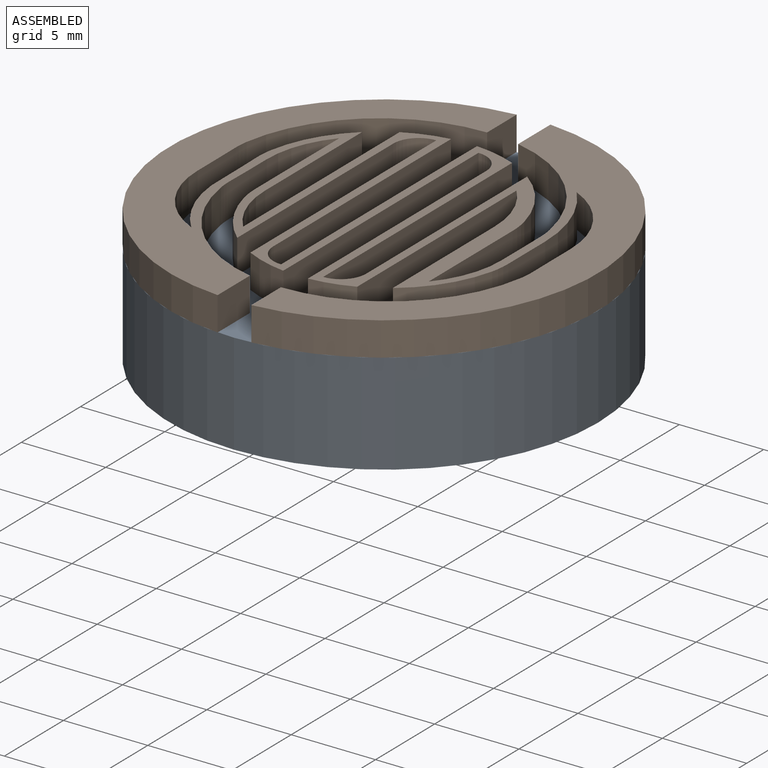
[diagram: assembled view]
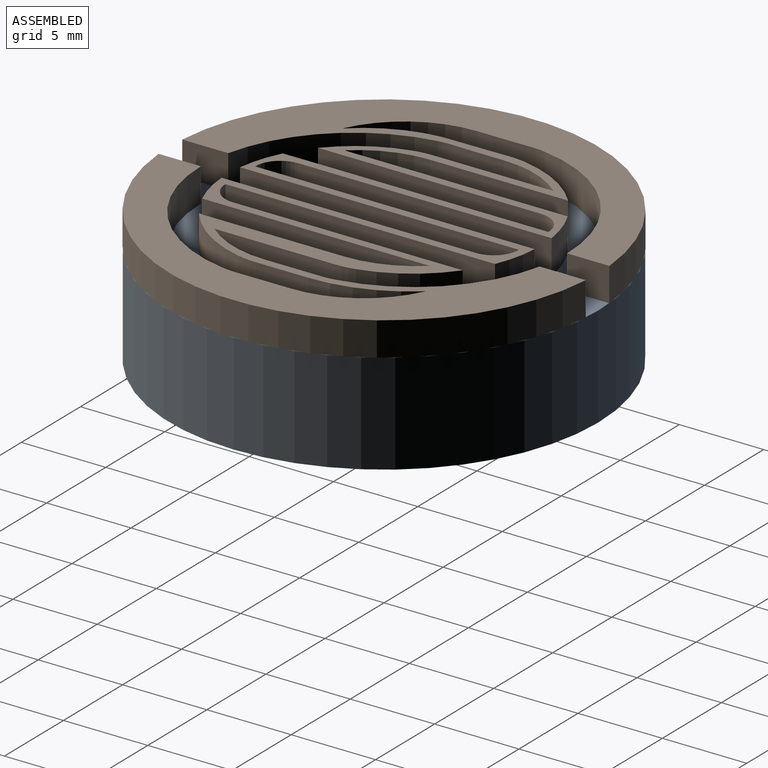
[diagram: assembled view, second angle]
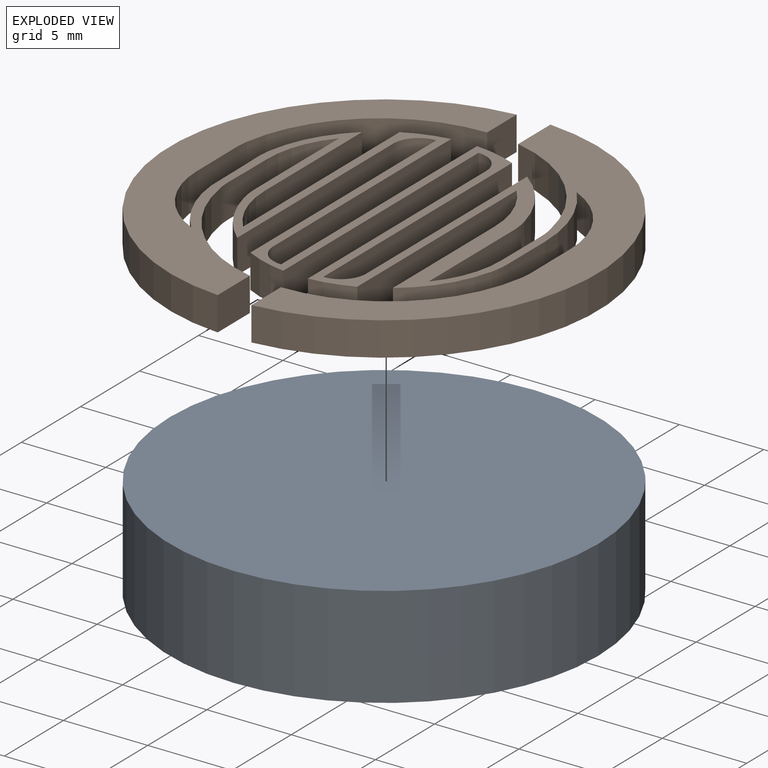
[diagram: exploded view]
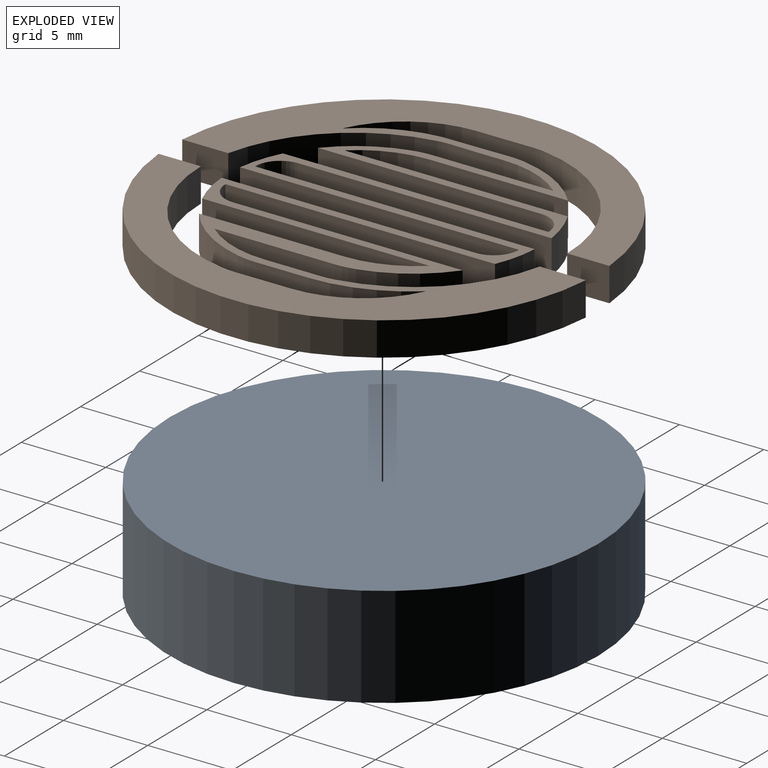
[diagram: exploded view, second angle]
ASSEMBLY  parts=2 mates=2
PART A: 3 faces, bbox 25.4x25.4x6 mm
  f0: cylinder r=12.7mm len=25.4mm, axis (0,0,-1), area 478.8mm2, adj f1,f2
  f1: plane 25.4x25.4mm, normal (0,0,1), area 506.7mm2, adj f0
  f2: plane 25.4x25.4mm, normal (0,0,-1), area 506.7mm2, adj f0
PART B: 64 faces, bbox 25.4x25.3x2 mm
  f0: plane 13.21x2mm, normal (1,0,0), area 26.4mm2, adj f1,f61,f62,f63
  f1: cylinder r=1.5mm len=2mm, axis (0,0,-1), area 4.7mm2, adj f0,f2,f62,f63
  f2: plane 15.74x2mm, normal (-1,0,0), area 31.5mm2, adj f1,f3,f62,f63
  f3: cylinder r=7.57mm len=2.5mm, axis (0,0,-1), area 5.3mm2, adj f2,f4,f62,f63
  f4: plane 16.53x2mm, normal (1,0,0), area 33.1mm2, adj f3,f5,f62,f63
  f5: cylinder r=1.5mm len=2mm, axis (0,0,-1), area 4.7mm2, adj f4,f6,f62,f63
  f6: plane 15.08x2mm, normal (-1,0,0), area 30.2mm2, adj f5,f7,f62,f63
  f7: cylinder r=7.57mm len=2.5mm, axis (0,0,-1), area 5.2mm2, adj f6,f8,f62,f63
  f8: plane 13.48x2mm, normal (1,0,0), area 27mm2, adj f7,f9,f62,f63
  f9: cylinder r=6.08mm len=4mm, axis (0,0,-1), area 8.7mm2, adj f8,f10,f62,f63
  f10: plane 8.62x2mm, normal (-1,0,0), area 17.2mm2, adj f9,f11,f62,f63
  f11: cylinder r=7.57mm len=4.33mm, axis (0,0,-1), area 10.6mm2, adj f10,f12,f62,f63
  f12: cylinder r=5mm len=2mm, axis (0,0,-1), area 2.3mm2, adj f11,f13,f62,f63
  f13: plane 3.13x2mm, normal (1,0,0), area 6.3mm2, adj f12,f14,f62,f63
  f14: cylinder r=8.64mm len=5.53mm, axis (0,0,-1), area 12mm2, adj f13,f15,f62,f63
  f15: cylinder r=6.11mm len=5.53mm, axis (0,0,-1), area 13.8mm2, adj f14,f16,f62,f63
  f16: plane 2x1.5mm, normal (-1,0,0), area 3mm2, adj f15,f17,f62,f63
  f17: plane 2x1.73mm, normal (-1,-0.01,0), area 3.5mm2, adj f16,f18,f62,f63
  f18: cylinder r=5mm len=2mm, axis (0,0,-1), area 1.7mm2, adj f17,f19,f62,f63
  f19: cylinder r=9.07mm len=8.94mm, axis (0,0,-1), area 25.5mm2, adj f18,f20,f62,f63
  f20: plane 2.51x2mm, normal (-1,0,0), area 5mm2, adj f19,f21,f62,f63
  f21: cylinder r=12.7mm len=25.32mm, axis (0,0,-1), area 75.8mm2, adj f20,f22,f62,f63
  f22: plane 2.73x2mm, normal (-1,0,0), area 5.5mm2, adj f21,f23,f62,f63
  f23: cylinder r=9.07mm len=7.22mm, axis (0,0,-1), area 21.2mm2, adj f22,f24,f62,f63
  f24: cylinder r=5mm len=2mm, axis (0,0,-1), area 1.8mm2, adj f23,f25,f62,f63
  f25: plane 3.32x2mm, normal (-1,0,0), area 6.6mm2, adj f24,f26,f62,f63
  f26: cylinder r=6.08mm len=4mm, axis (0,0,-1), area 8.7mm2, adj f25,f27,f62,f63
  f27: plane 7.13x2mm, normal (1,0,0), area 14.3mm2, adj f26,f28,f62,f63
  f28: cylinder r=5mm len=2mm, axis (0,0,-1), area 2.3mm2, adj f27,f29,f62,f63
  f29: cylinder r=7.57mm len=4.33mm, axis (0,0,-1), area 10.6mm2, adj f28,f30,f62,f63
  f30: plane 13.62x2mm, normal (-1,0,0), area 27.2mm2, adj f29,f31,f62,f63
  f31: cylinder r=1.5mm len=2mm, axis (0,0,-1), area 4.7mm2, adj f30,f32,f62,f63
  f32: plane 15.98x2mm, normal (1,0,0), area 32mm2, adj f31,f33,f62,f63
  f33: cylinder r=7.57mm len=2.5mm, axis (0,0,-1), area 5.2mm2, adj f32,f34,f62,f63
  f34: plane 16.58x2mm, normal (-1,0,0), area 33.2mm2, adj f33,f35,f62,f63
  f35: cylinder r=1.5mm len=2mm, axis (0,0,-1), area 4.7mm2, adj f34,f36,f62,f63
  f36: plane 15.03x2mm, normal (1,0,0), area 30.1mm2, adj f35,f37,f62,f63
  f37: cylinder r=7.57mm len=2.5mm, axis (0,0,-1), area 5.3mm2, adj f36,f38,f62,f63
  f38: plane 13.24x2mm, normal (-1,0,0), area 26.5mm2, adj f37,f39,f62,f63
  f39: cylinder r=6.08mm len=4mm, axis (0,0,-1), area 8.7mm2, adj f38,f40,f62,f63
  f40: plane 8.21x2mm, normal (1,0,0), area 16.4mm2, adj f39,f41,f62,f63
  f41: cylinder r=7.57mm len=4.27mm, axis (0,0,-1), area 10mm2, adj f40,f42,f62,f63
  f42: cylinder r=5mm len=2mm, axis (0,0,-1), area 2.1mm2, adj f41,f43,f62,f63
  f43: plane 2x1.42mm, normal (-1,-0.02,0), area 2.8mm2, adj f42,f44,f62,f63
  f44: plane 2x1.5mm, normal (-1,-0.01,0), area 3mm2, adj f43,f45,f62,f63
  f45: cylinder r=7.51mm len=5.53mm, axis (0,0,-1), area 12.1mm2, adj f44,f46,f62,f63
  f46: cylinder r=6.11mm len=5.53mm, axis (0,0,-1), area 13.8mm2, adj f45,f47,f62,f63
  f47: plane 2x1.5mm, normal (1,0,0), area 3mm2, adj f46,f48,f62,f63
  f48: plane 2x1.72mm, normal (1,0.01,0), area 3.4mm2, adj f47,f49,f62,f63
  f49: cylinder r=5mm len=2mm, axis (0,0,-1), area 1.7mm2, adj f48,f50,f62,f63
  f50: cylinder r=9.07mm len=8.95mm, axis (0,0,-1), area 25.5mm2, adj f49,f51,f62,f63
  f51: plane 2.51x2mm, normal (1,0,0), area 5mm2, adj f50,f52,f62,f63
  f52: cylinder r=12.7mm len=25.32mm, axis (0,0,-1), area 75.8mm2, adj f51,f53,f62,f63
  f53: plane 2.73x2mm, normal (1,0,0), area 5.5mm2, adj f52,f54,f62,f63
  f54: cylinder r=9.07mm len=7.53mm, axis (0,0,-1), area 21.8mm2, adj f53,f55,f62,f63
  f55: cylinder r=5mm len=2mm, axis (0,0,-1), area 1.6mm2, adj f54,f56,f62,f63
  f56: plane 2x1.61mm, normal (1,-0.01,0), area 3.2mm2, adj f55,f57,f62,f63
  f57: plane 2x1.5mm, normal (1,0,0), area 3mm2, adj f56,f58,f62,f63
  f58: cylinder r=6.08mm len=4mm, axis (0,0,-1), area 8.7mm2, adj f57,f59,f62,f63
  f59: plane 7.13x2mm, normal (-1,0,0), area 14.3mm2, adj f58,f60,f62,f63
  f60: cylinder r=5mm len=2mm, axis (0,0,-1), area 2.3mm2, adj f59,f61,f62,f63
  f61: cylinder r=7.57mm len=3.93mm, axis (0,0,-1), area 9.3mm2, adj f0,f60,f62,f63
  f62: plane 25.4x25.32mm, normal (0,0,1), area 251.1mm2, adj f0,f1,f2,f3,f4,f5,f6,f7
  f63: plane 25.4x25.32mm, normal (0,0,-1), area 251.1mm2, adj f0,f1,f2,f3,f4,f5,f6,f7
PLACE A at identity
PLACE B t=(0,0,6)mm
MATE planar B.f63 <-> A.f0  axis (0,0,-1) through (10,-0.87,6)mm
MATE cylindrical B.f21 <-> A.f0  axis (0,0,-1) through (0,0,7)mm
